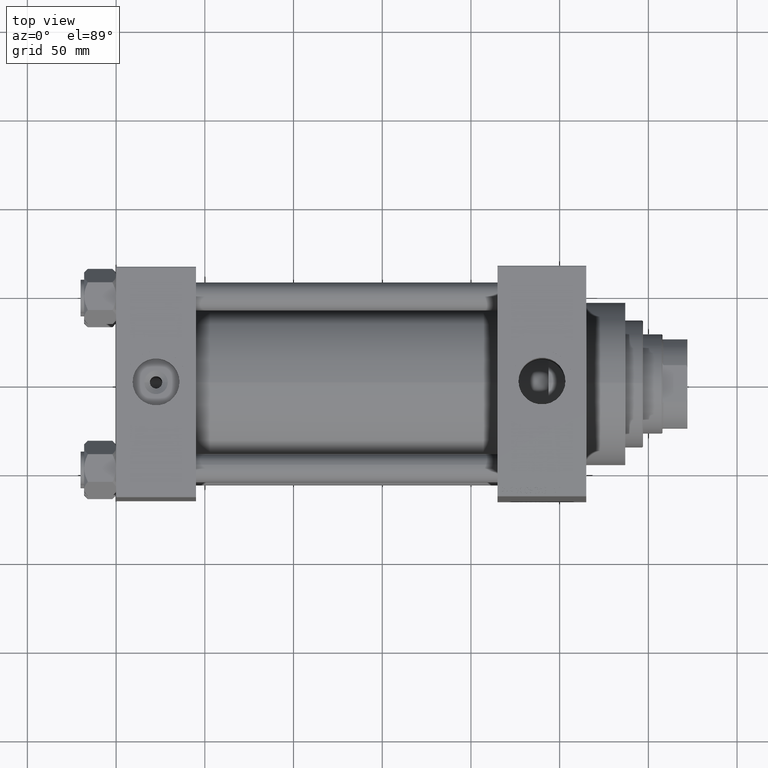
[diagram: clean part render]
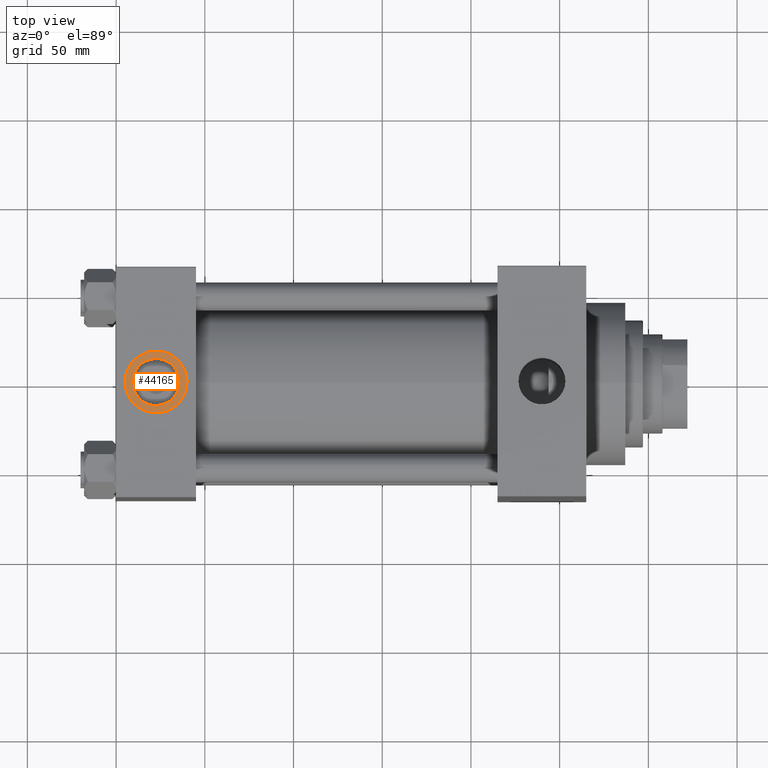
[diagram: same view with one face highlighted and labeled with its STEP entity id]
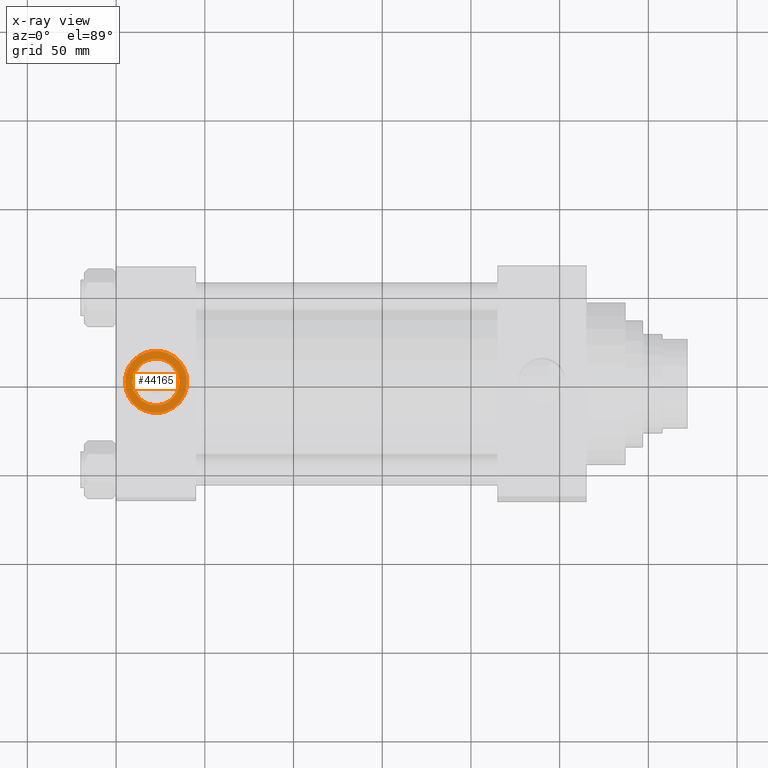
[diagram: x-ray of the same camera — body ghosted, the highlighted face saturated]
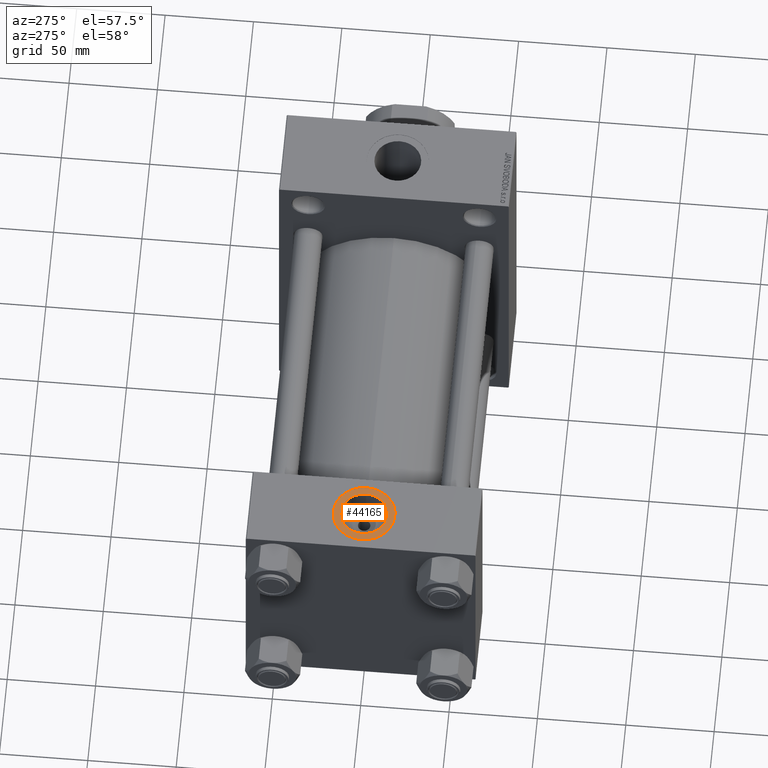
[diagram: same view with one face highlighted and labeled with its STEP entity id]
A machine part, top view. The second image highlights one B-rep face of the part: STEP entity #44165.
The next image is the same camera in x-ray: the body ghosted, the highlighted face saturated — about 0% of this face is hidden behind the body in this view.
A second angle (auxiliary view) of the same face is appended — the face is thin or edge-on in the first view.
In plain terms, the highlighted planar face has unit normal (0, 0, 1).
Its self-contained STEP definition (entity closure, byte-faithful):
#522 = DIRECTION ( 'NONE',  ( 1.000000000000000000, 0.000000000000000000, 0.000000000000000000 ) ) ;
#677 = ORIENTED_EDGE ( 'NONE', *, *, #36742, .F. ) ;
#1668 = AXIS2_PLACEMENT_3D ( 'NONE', #33700, #25981, #11508 ) ;
#4375 = DIRECTION ( 'NONE',  ( 0.000000000000000000, 0.000000000000000000, 1.000000000000000000 ) ) ;
#4706 = EDGE_LOOP ( 'NONE', ( #42220, #677 ) ) ;
#4926 = DIRECTION ( 'NONE',  ( 0.000000000000000000, 0.000000000000000000, 1.000000000000000000 ) ) ;
#5340 = CARTESIAN_POINT ( 'NONE',  ( 4.999999999999997335, -6.530485481376167224E-15, 64.79999999999999716 ) ) ;
#6053 = CIRCLE ( 'NONE', #22989, 13.22000000000000242 ) ;
#6996 = CIRCLE ( 'NONE', #42508, 17.50000000000000000 ) ;
#7992 = CARTESIAN_POINT ( 'NONE',  ( 40.00000000000000000, -8.673617379884035472E-15, 64.79999999999999716 ) ) ;
#8495 = CARTESIAN_POINT ( 'NONE',  ( 35.71999999999999886, -8.673617379884035472E-15, 64.79999999999999716 ) ) ;
#8652 = EDGE_CURVE ( 'NONE', #23110, #46335, #6996, .T. ) ;
#8783 = DIRECTION ( 'NONE',  ( 1.000000000000000000, 0.000000000000000000, 0.000000000000000000 ) ) ;
#11508 = DIRECTION ( 'NONE',  ( 1.000000000000000000, 0.000000000000000000, 0.000000000000000000 ) ) ;
#12904 = DIRECTION ( 'NONE',  ( 0.000000000000000000, 0.000000000000000000, 1.000000000000000000 ) ) ;
#16525 = DIRECTION ( 'NONE',  ( 1.000000000000000000, 0.000000000000000000, 0.000000000000000000 ) ) ;
#18599 = ORIENTED_EDGE ( 'NONE', *, *, #8652, .T. ) ;
#22989 = AXIS2_PLACEMENT_3D ( 'NONE', #26647, #12904, #8783 ) ;
#23110 = VERTEX_POINT ( 'NONE', #5340 ) ;
#23222 = CIRCLE ( 'NONE', #1668, 13.22000000000000242 ) ;
#25102 = EDGE_CURVE ( 'NONE', #37043, #28019, #6053, .T. ) ;
#25981 = DIRECTION ( 'NONE',  ( 0.000000000000000000, 0.000000000000000000, 1.000000000000000000 ) ) ;
#26174 = EDGE_CURVE ( 'NONE', #46335, #23110, #39123, .T. ) ;
#26580 = DIRECTION ( 'NONE',  ( 0.000000000000000000, 0.000000000000000000, 1.000000000000000000 ) ) ;
#26647 = CARTESIAN_POINT ( 'NONE',  ( 22.50000000000000000, -8.673617379884035472E-15, 64.79999999999999716 ) ) ;
#26806 = FACE_BOUND ( 'NONE', #4706, .T. ) ;
#28019 = VERTEX_POINT ( 'NONE', #43307 ) ;
#29723 = FACE_OUTER_BOUND ( 'NONE', #42290, .T. ) ;
#30507 = CARTESIAN_POINT ( 'NONE',  ( 22.50000000000000000, -8.673617379884035472E-15, 64.79999999999999716 ) ) ;
#30879 = ORIENTED_EDGE ( 'NONE', *, *, #26174, .T. ) ;
#32929 = AXIS2_PLACEMENT_3D ( 'NONE', #33815, #26580, #522 ) ;
#33700 = CARTESIAN_POINT ( 'NONE',  ( 22.50000000000000000, -8.673617379884035472E-15, 64.79999999999999716 ) ) ;
#33815 = CARTESIAN_POINT ( 'NONE',  ( 22.50000000000000000, -8.673617379884035472E-15, 64.79999999999999716 ) ) ;
#34055 = CARTESIAN_POINT ( 'NONE',  ( 22.50000000000000000, -8.673617379884035472E-15, 64.79999999999999716 ) ) ;
#34292 = DIRECTION ( 'NONE',  ( 1.000000000000000000, 0.000000000000000000, -0.000000000000000000 ) ) ;
#34864 = AXIS2_PLACEMENT_3D ( 'NONE', #34055, #4375, #34292 ) ;
#36742 = EDGE_CURVE ( 'NONE', #28019, #37043, #23222, .T. ) ;
#37043 = VERTEX_POINT ( 'NONE', #8495 ) ;
#39123 = CIRCLE ( 'NONE', #32929, 17.50000000000000000 ) ;
#41775 = PLANE ( 'NONE',  #34864 ) ;
#42220 = ORIENTED_EDGE ( 'NONE', *, *, #25102, .F. ) ;
#42290 = EDGE_LOOP ( 'NONE', ( #30879, #18599 ) ) ;
#42508 = AXIS2_PLACEMENT_3D ( 'NONE', #30507, #4926, #16525 ) ;
#43307 = CARTESIAN_POINT ( 'NONE',  ( 9.279999999999994031, -7.054634311411234321E-15, 64.79999999999999716 ) ) ;
#44165 = ADVANCED_FACE ( 'NONE', ( #26806, #29723 ), #41775, .T. ) ;
#46335 = VERTEX_POINT ( 'NONE', #7992 ) ;